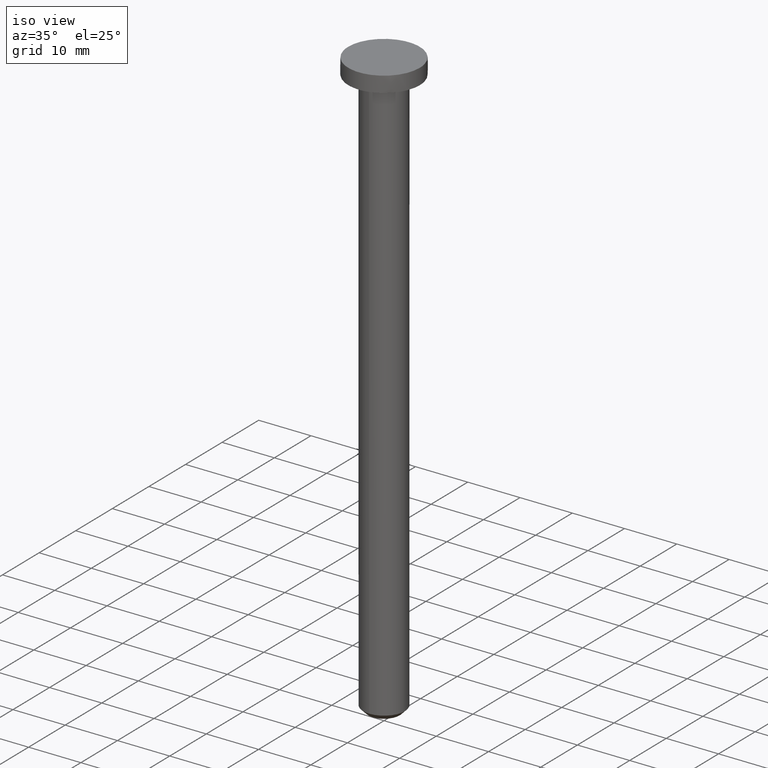
[diagram: clean part render]
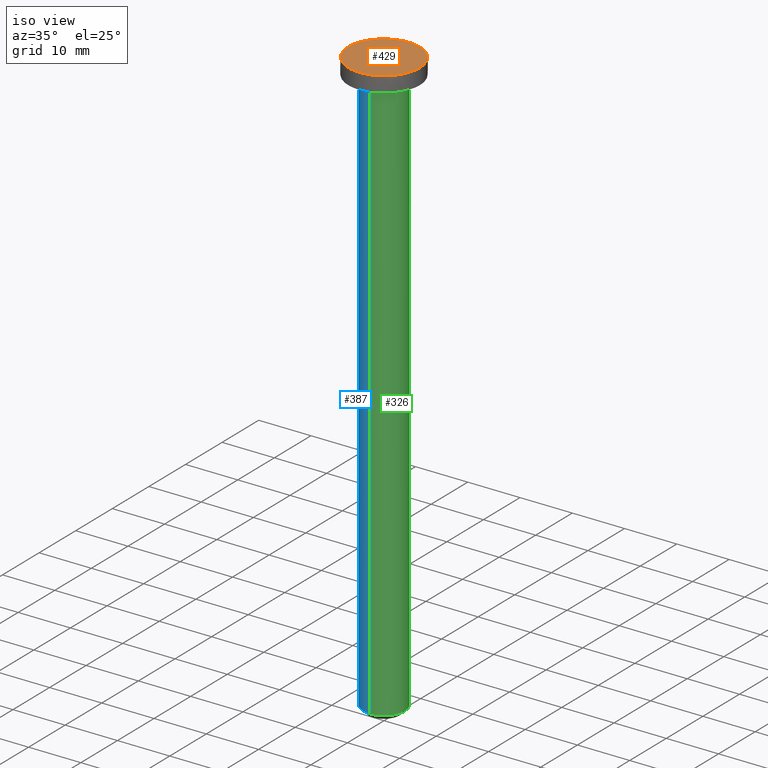
[diagram: same view with three faces highlighted in distinct colors, each labeled with its STEP entity id]
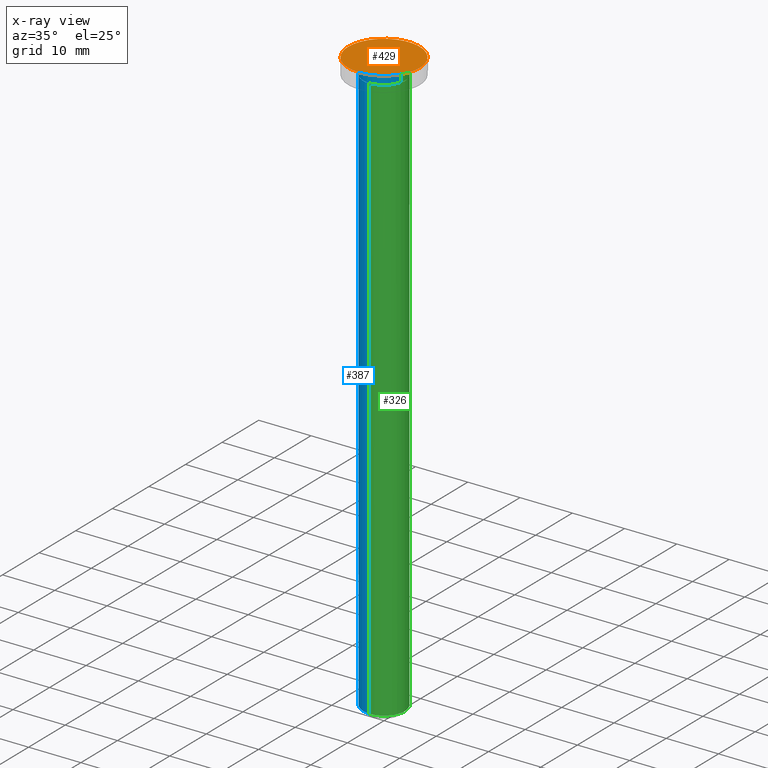
[diagram: x-ray of the same camera — body ghosted, the three highlighted faces saturated]
A machine part, iso view with three faces highlighted in distinct colors.
The next image is the same camera in x-ray (body ghosted, the three faces saturated) — at least one of them is partly hidden behind the body in this view.
Their STEP definitions:

[orange] entity #429 — the highlighted face is a freeform B-spline surface patch.
#388=CARTESIAN_POINT('',(-7.520453119272260,-7.520453119272164,112.999999993067210));
#389=CARTESIAN_POINT('',(7.520453486058826,-7.520453119272164,112.999999993067210));
#390=CARTESIAN_POINT('',(-7.520453119272260,7.520453486058730,112.999999993067210));
#391=CARTESIAN_POINT('',(7.520453486058826,7.520453486058730,112.999999993067210));
#392=B_SPLINE_SURFACE_WITH_KNOTS('',1,1,((#388,#390),(#389,#391)),.UNSPECIFIED.,.F.,.F.,.U.,(2,2),(2,2),(0.0,15.040906605331079),(0.0,15.040906605330891),.UNSPECIFIED.);
#393=CARTESIAN_POINT('',(6.837397168630480,0.0,112.999999986134600));
#394=VERTEX_POINT('',#393);
#395=CARTESIAN_POINT('',(-6.837397168630480,0.0,112.999999986134600));
#396=VERTEX_POINT('',#395);
#397=CARTESIAN_POINT('',(6.837397168630480,0.0,112.999999986134600));
#398=CARTESIAN_POINT('',(6.837397168630479,-6.837397168630479,112.999999986134600));
#399=CARTESIAN_POINT('',(0.0,-6.837397168630480,112.999999986134600));
#400=CARTESIAN_POINT('',(-6.837397168630479,-6.837397168630479,112.999999986134600));
#401=CARTESIAN_POINT('',(-6.837397168630480,0.0,112.999999986134600));
#409=(BOUNDED_CURVE()B_SPLINE_CURVE(2,(#397,#398,#399,#400,#401),.UNSPECIFIED.,.F.,.U.)B_SPLINE_CURVE_WITH_KNOTS((3,2,3),(0.500000000000000,0.750000000000000,1.0),.UNSPECIFIED.)CURVE()GEOMETRIC_REPRESENTATION_ITEM()RATIONAL_B_SPLINE_CURVE((1.0,0.707106781186548,1.0,0.707106781186548,1.0))REPRESENTATION_ITEM(''));
#410=EDGE_CURVE('',#394,#396,#409,.T.);
#411=ORIENTED_EDGE('',*,*,#410,.F.);
#412=CARTESIAN_POINT('',(-6.837397168630480,0.0,112.999999986134600));
#413=CARTESIAN_POINT('',(-6.837397168630479,6.837397168630479,112.999999986134600));
#414=CARTESIAN_POINT('',(0.0,6.837397168630480,112.999999986134600));
#415=CARTESIAN_POINT('',(6.837397168630479,6.837397168630479,112.999999986134600));
#416=CARTESIAN_POINT('',(6.837397168630480,0.0,112.999999986134600));
#424=(BOUNDED_CURVE()B_SPLINE_CURVE(2,(#412,#413,#414,#415,#416),.UNSPECIFIED.,.F.,.U.)B_SPLINE_CURVE_WITH_KNOTS((3,2,3),(0.0,0.250000000000000,0.500000000000000),.UNSPECIFIED.)CURVE()GEOMETRIC_REPRESENTATION_ITEM()RATIONAL_B_SPLINE_CURVE((1.0,0.707106781186548,1.0,0.707106781186548,1.0))REPRESENTATION_ITEM(''));
#425=EDGE_CURVE('',#396,#394,#424,.T.);
#426=ORIENTED_EDGE('',*,*,#425,.F.);
#427=EDGE_LOOP('',(#411,#426));
#428=FACE_OUTER_BOUND('',#427,.T.);
#429=ADVANCED_FACE('',(#428),#392,.T.);

[blue] entity #387 — the highlighted face is a freeform B-spline surface patch.
#70=CARTESIAN_POINT('',(-3.896872612602162,0.902432181418461,1.000000000113562));
#71=VERTEX_POINT('',#70);
#72=CARTESIAN_POINT('',(-4.0,0.0,1.0));
#73=VERTEX_POINT('',#72);
#74=CARTESIAN_POINT('',(-3.896872612602162,0.902432181418461,1.000000000113562));
#75=CARTESIAN_POINT('',(-4.000000000000001,0.457108643719572,1.0));
#76=CARTESIAN_POINT('',(-4.0,0.0,1.0));
#84=(BOUNDED_CURVE()B_SPLINE_CURVE(2,(#74,#75,#76),.UNSPECIFIED.,.F.,.U.)B_SPLINE_CURVE_WITH_KNOTS((3,3),(0.961422971703980,1.0),.UNSPECIFIED.)CURVE()GEOMETRIC_REPRESENTATION_ITEM()RATIONAL_B_SPLINE_CURVE((0.923556557312165,0.954804200040484,1.0))REPRESENTATION_ITEM(''));
#85=EDGE_CURVE('',#71,#73,#84,.T.);
#143=CARTESIAN_POINT('',(-0.034906143808473,3.999847692487240,1.000000000246385));
#144=VERTEX_POINT('',#143);
#150=CARTESIAN_POINT('',(0.496512008596728,3.969064855267452,1.0));
#151=VERTEX_POINT('',#150);
#152=CARTESIAN_POINT('',(0.496512008596728,3.969064855267452,1.0));
#153=CARTESIAN_POINT('',(0.249219710414635,4.000000000000001,1.0));
#154=CARTESIAN_POINT('',(0.0,4.0,1.0));
#155=CARTESIAN_POINT('',(-0.017453405095732,4.0,1.0));
#156=CARTESIAN_POINT('',(-0.034906143808473,3.999847692487240,1.000000000246385));
#164=(BOUNDED_CURVE()B_SPLINE_CURVE(2,(#152,#153,#154,#155,#156),.UNSPECIFIED.,.F.,.U.)B_SPLINE_CURVE_WITH_KNOTS((3,2,3),(0.728526071005724,0.750000000000000,0.751539894494651),.UNSPECIFIED.)CURVE()GEOMETRIC_REPRESENTATION_ITEM()RATIONAL_B_SPLINE_CURVE((0.954005430228970,0.974841727265180,1.0,0.998195901379314,0.996414027730899))REPRESENTATION_ITEM(''));
#165=EDGE_CURVE('',#151,#144,#164,.T.);
#182=CARTESIAN_POINT('',(-0.034906142388283,-3.999847692253240,1.000000000000000));
#183=VERTEX_POINT('',#182);
#199=CARTESIAN_POINT('',(-4.0,0.0,1.0));
#200=CARTESIAN_POINT('',(-4.0,-3.965244841597140,1.0));
#201=CARTESIAN_POINT('',(-0.034906142388283,-3.999847692253239,1.000000000000000));
#209=(BOUNDED_CURVE()B_SPLINE_CURVE(2,(#199,#200,#201),.UNSPECIFIED.,.F.,.U.)B_SPLINE_CURVE_WITH_KNOTS((3,3),(0.0,0.248460105630242),.UNSPECIFIED.)CURVE()GEOMETRIC_REPRESENTATION_ITEM()RATIONAL_B_SPLINE_CURVE((1.0,0.708910879660912,0.996414028019936))REPRESENTATION_ITEM(''));
#210=EDGE_CURVE('',#73,#183,#209,.T.);
#229=CARTESIAN_POINT('',(-0.034906143808473,3.999847692487240,1.000000000246385));
#230=CARTESIAN_POINT('',(-3.185945672998599,3.972348984009678,1.0));
#231=CARTESIAN_POINT('',(-3.896872612602162,0.902432181418461,1.000000000113562));
#239=(BOUNDED_CURVE()B_SPLINE_CURVE(2,(#229,#230,#231),.UNSPECIFIED.,.F.,.U.)B_SPLINE_CURVE_WITH_KNOTS((3,3),(0.751539894494651,0.961422971703981),.UNSPECIFIED.)CURVE()GEOMETRIC_REPRESENTATION_ITEM()RATIONAL_B_SPLINE_CURVE((0.996414027730898,0.753549905658436,0.923556557312166))REPRESENTATION_ITEM(''));
#240=EDGE_CURVE('',#144,#71,#239,.T.);
#278=CARTESIAN_POINT('',(0.496512008573829,3.969064855270316,110.0));
#279=VERTEX_POINT('',#278);
#295=CARTESIAN_POINT('',(-0.034906142421084,-3.999847692252953,110.0));
#296=VERTEX_POINT('',#295);
#312=CARTESIAN_POINT('',(-0.034906142421084,-3.999847692252953,110.0));
#313=CARTESIAN_POINT('',(-0.034906142388283,-3.999847692253240,1.000000000000000));
#314=QUASI_UNIFORM_CURVE('',1,(#312,#313),.UNSPECIFIED.,.F.,.U.);
#315=EDGE_CURVE('',#296,#183,#314,.T.);
#319=CARTESIAN_POINT('',(0.496512008573829,3.969064855270316,110.0));
#320=CARTESIAN_POINT('',(0.496512008596728,3.969064855267452,1.0));
#321=QUASI_UNIFORM_CURVE('',1,(#319,#320),.UNSPECIFIED.,.F.,.U.);
#322=EDGE_CURVE('',#279,#151,#321,.T.);
#327=CARTESIAN_POINT('',(-0.034906141993496,-3.999847692256684,112.724999999999990));
#328=CARTESIAN_POINT('',(-4.034753834250179,-3.964941550263188,112.725000000000020));
#329=CARTESIAN_POINT('',(-3.999847692256684,0.034906141993496,112.724999999999990));
#330=CARTESIAN_POINT('',(-3.964941550263188,4.034753834250179,112.725000000000020));
#331=CARTESIAN_POINT('',(0.034906141993496,3.999847692256684,112.724999999999990));
#332=CARTESIAN_POINT('',(0.266600635832694,3.997825725041103,112.725000000000010));
#333=CARTESIAN_POINT('',(0.496512008319317,3.969064855302155,112.725000000000070));
#334=CARTESIAN_POINT('',(-0.034906141993496,-3.999847692256684,-1.793125000000003));
#335=CARTESIAN_POINT('',(-4.034753834250179,-3.964941550263188,-1.793125000000004));
#336=CARTESIAN_POINT('',(-3.999847692256684,0.034906141993496,-1.793125000000003));
#337=CARTESIAN_POINT('',(-3.964941550263188,4.034753834250179,-1.793125000000004));
#338=CARTESIAN_POINT('',(0.034906141993496,3.999847692256684,-1.793125000000003));
#339=CARTESIAN_POINT('',(0.266600635832694,3.997825725041103,-1.793125000000004));
#340=CARTESIAN_POINT('',(0.496512008319317,3.969064855302155,-1.793125000000003));
#348=(BOUNDED_SURFACE()B_SPLINE_SURFACE(2,1,((#327,#334),(#328,#335),(#329,#336),(#330,#337),(#331,#338),(#332,#339),(#333,#340)),.UNSPECIFIED.,.F.,.F.,.U.)B_SPLINE_SURFACE_WITH_KNOTS((3,2,2,3),(2,2),(0.0,6.627416997969519,13.254833995939039,13.785027355776601),(0.0,114.518125000000000),.UNSPECIFIED.)GEOMETRIC_REPRESENTATION_ITEM()RATIONAL_B_SPLINE_SURFACE(((1.0,1.0),(0.707106781186548,0.707106781186548),(1.0,1.0),(0.707106781186548,0.707106781186548),(1.0,1.0),(0.976568542494924,0.976568542494924),(0.956886118190660,0.956886118190660)))REPRESENTATION_ITEM('')SURFACE());
#349=CARTESIAN_POINT('',(-4.0,0.0,110.0));
#350=VERTEX_POINT('',#349);
#351=CARTESIAN_POINT('',(-4.0,0.0,110.0));
#352=CARTESIAN_POINT('',(-4.000000000000000,4.000000000000000,110.0));
#353=CARTESIAN_POINT('',(0.0,4.0,110.0));
#354=CARTESIAN_POINT('',(0.249219710391468,4.0,109.999999999999970));
#355=CARTESIAN_POINT('',(0.496512008573829,3.969064855270316,110.0));
#363=(BOUNDED_CURVE()B_SPLINE_CURVE(2,(#351,#352,#353,#354,#355),.UNSPECIFIED.,.F.,.U.)B_SPLINE_CURVE_WITH_KNOTS((3,2,3),(0.0,0.250000000000000,0.271473928992330),.UNSPECIFIED.)CURVE()GEOMETRIC_REPRESENTATION_ITEM()RATIONAL_B_SPLINE_CURVE((1.0,0.707106781186548,1.0,0.974841727267460,0.954005430232746))REPRESENTATION_ITEM(''));
#364=EDGE_CURVE('',#350,#279,#363,.T.);
#365=ORIENTED_EDGE('',*,*,#364,.T.);
#366=ORIENTED_EDGE('',*,*,#322,.T.);
#367=ORIENTED_EDGE('',*,*,#165,.T.);
#368=ORIENTED_EDGE('',*,*,#240,.T.);
#369=ORIENTED_EDGE('',*,*,#85,.T.);
#370=ORIENTED_EDGE('',*,*,#210,.T.);
#371=ORIENTED_EDGE('',*,*,#315,.F.);
#372=CARTESIAN_POINT('',(-0.034906142421084,-3.999847692252954,110.000000000000040));
#373=CARTESIAN_POINT('',(-4.000000000000001,-3.965244841532100,109.999999999999990));
#374=CARTESIAN_POINT('',(-4.0,0.0,110.0));
#382=(BOUNDED_CURVE()B_SPLINE_CURVE(2,(#372,#373,#374),.UNSPECIFIED.,.F.,.U.)B_SPLINE_CURVE_WITH_KNOTS((3,3),(0.751539894372647,1.0),.UNSPECIFIED.)CURVE()GEOMETRIC_REPRESENTATION_ITEM()RATIONAL_B_SPLINE_CURVE((0.996414028013251,0.708910879664297,1.0))REPRESENTATION_ITEM(''));
#383=EDGE_CURVE('',#296,#350,#382,.T.);
#384=ORIENTED_EDGE('',*,*,#383,.T.);
#385=EDGE_LOOP('',(#365,#366,#367,#368,#369,#370,#371,#384));
#386=FACE_OUTER_BOUND('',#385,.T.);
#387=ADVANCED_FACE('',(#386),#348,.T.);

[green] entity #326 — the highlighted face is a freeform B-spline surface patch.
#150=CARTESIAN_POINT('',(0.496512008596728,3.969064855267452,1.0));
#151=VERTEX_POINT('',#150);
#167=CARTESIAN_POINT('',(4.0,0.0,1.0));
#168=VERTEX_POINT('',#167);
#169=CARTESIAN_POINT('',(4.0,0.0,1.0));
#170=CARTESIAN_POINT('',(4.0,3.530794400103492,1.0));
#171=CARTESIAN_POINT('',(0.496512008596728,3.969064855267452,1.0));
#179=(BOUNDED_CURVE()B_SPLINE_CURVE(2,(#169,#170,#171),.UNSPECIFIED.,.F.,.U.)B_SPLINE_CURVE_WITH_KNOTS((3,3),(0.500000000000000,0.728526071005724),.UNSPECIFIED.)CURVE()GEOMETRIC_REPRESENTATION_ITEM()RATIONAL_B_SPLINE_CURVE((1.0,0.732265053921368,0.954005430228968))REPRESENTATION_ITEM(''));
#180=EDGE_CURVE('',#168,#151,#179,.T.);
#182=CARTESIAN_POINT('',(-0.034906142388283,-3.999847692253240,1.000000000000000));
#183=VERTEX_POINT('',#182);
#184=CARTESIAN_POINT('',(-0.034906142388283,-3.999847692253239,1.000000000000000));
#185=CARTESIAN_POINT('',(-0.017453403677616,-4.0,1.0));
#186=CARTESIAN_POINT('',(0.0,-4.0,1.0));
#187=CARTESIAN_POINT('',(4.000000000000000,-4.000000000000000,1.0));
#188=CARTESIAN_POINT('',(4.0,0.0,1.0));
#196=(BOUNDED_CURVE()B_SPLINE_CURVE(2,(#184,#185,#186,#187,#188),.UNSPECIFIED.,.F.,.U.)B_SPLINE_CURVE_WITH_KNOTS((3,2,3),(0.248460105630242,0.250000000000000,0.500000000000000),.UNSPECIFIED.)CURVE()GEOMETRIC_REPRESENTATION_ITEM()RATIONAL_B_SPLINE_CURVE((0.996414028019936,0.998195901525636,1.0,0.707106781186548,1.0))REPRESENTATION_ITEM(''));
#197=EDGE_CURVE('',#183,#168,#196,.T.);
#260=CARTESIAN_POINT('',(0.496512008319317,3.969064855302155,112.725000000000070));
#261=CARTESIAN_POINT('',(4.030931322009780,3.526925032532884,112.725000000000020));
#262=CARTESIAN_POINT('',(3.999847692256684,-0.034906141993496,112.724999999999990));
#263=CARTESIAN_POINT('',(3.964941550263188,-4.034753834250179,112.725000000000020));
#264=CARTESIAN_POINT('',(-0.034906141993496,-3.999847692256684,112.724999999999990));
#265=CARTESIAN_POINT('',(0.496512008319317,3.969064855302155,-1.793125000000003));
#266=CARTESIAN_POINT('',(4.030931322009780,3.526925032532884,-1.793125000000004));
#267=CARTESIAN_POINT('',(3.999847692256684,-0.034906141993496,-1.793125000000003));
#268=CARTESIAN_POINT('',(3.964941550263188,-4.034753834250179,-1.793125000000004));
#269=CARTESIAN_POINT('',(-0.034906141993496,-3.999847692256684,-1.793125000000003));
#277=(BOUNDED_SURFACE()B_SPLINE_SURFACE(2,1,((#260,#265),(#261,#266),(#262,#267),(#263,#268),(#264,#269)),.UNSPECIFIED.,.F.,.F.,.U.)B_SPLINE_SURFACE_WITH_KNOTS((3,2,3),(2,2),(0.0,6.097223638131957,12.724640636101480),(0.0,114.518125000000000),.UNSPECIFIED.)GEOMETRIC_REPRESENTATION_ITEM()RATIONAL_B_SPLINE_SURFACE(((0.956886118190660,0.956886118190660),(0.730538238691624,0.730538238691624),(1.0,1.0),(0.707106781186548,0.707106781186548),(1.0,1.0)))REPRESENTATION_ITEM('')SURFACE());
#278=CARTESIAN_POINT('',(0.496512008573829,3.969064855270316,110.0));
#279=VERTEX_POINT('',#278);
#280=CARTESIAN_POINT('',(4.0,0.0,110.0));
#281=VERTEX_POINT('',#280);
#282=CARTESIAN_POINT('',(0.496512008573829,3.969064855270316,110.0));
#283=CARTESIAN_POINT('',(4.000000000000000,3.530794400144569,110.0));
#284=CARTESIAN_POINT('',(4.0,0.0,110.0));
#292=(BOUNDED_CURVE()B_SPLINE_CURVE(2,(#282,#283,#284),.UNSPECIFIED.,.F.,.U.)B_SPLINE_CURVE_WITH_KNOTS((3,3),(0.271473928992330,0.500000000000000),.UNSPECIFIED.)CURVE()GEOMETRIC_REPRESENTATION_ITEM()RATIONAL_B_SPLINE_CURVE((0.954005430232746,0.732265053919087,1.0))REPRESENTATION_ITEM(''));
#293=EDGE_CURVE('',#279,#281,#292,.T.);
#294=ORIENTED_EDGE('',*,*,#293,.T.);
#295=CARTESIAN_POINT('',(-0.034906142421084,-3.999847692252953,110.0));
#296=VERTEX_POINT('',#295);
#297=CARTESIAN_POINT('',(4.0,0.0,110.0));
#298=CARTESIAN_POINT('',(4.000000000000000,-4.000000000000000,110.0));
#299=CARTESIAN_POINT('',(0.0,-4.0,110.0));
#300=CARTESIAN_POINT('',(-0.017453403710428,-4.0,110.0));
#301=CARTESIAN_POINT('',(-0.034906142421084,-3.999847692252954,110.000000000000040));
#309=(BOUNDED_CURVE()B_SPLINE_CURVE(2,(#297,#298,#299,#300,#301),.UNSPECIFIED.,.F.,.U.)B_SPLINE_CURVE_WITH_KNOTS((3,2,3),(0.500000000000000,0.750000000000000,0.751539894372648),.UNSPECIFIED.)CURVE()GEOMETRIC_REPRESENTATION_ITEM()RATIONAL_B_SPLINE_CURVE((1.0,0.707106781186548,1.0,0.998195901522250,0.996414028013249))REPRESENTATION_ITEM(''));
#310=EDGE_CURVE('',#281,#296,#309,.T.);
#311=ORIENTED_EDGE('',*,*,#310,.T.);
#312=CARTESIAN_POINT('',(-0.034906142421084,-3.999847692252953,110.0));
#313=CARTESIAN_POINT('',(-0.034906142388283,-3.999847692253240,1.000000000000000));
#314=QUASI_UNIFORM_CURVE('',1,(#312,#313),.UNSPECIFIED.,.F.,.U.);
#315=EDGE_CURVE('',#296,#183,#314,.T.);
#316=ORIENTED_EDGE('',*,*,#315,.T.);
#317=ORIENTED_EDGE('',*,*,#197,.T.);
#318=ORIENTED_EDGE('',*,*,#180,.T.);
#319=CARTESIAN_POINT('',(0.496512008573829,3.969064855270316,110.0));
#320=CARTESIAN_POINT('',(0.496512008596728,3.969064855267452,1.0));
#321=QUASI_UNIFORM_CURVE('',1,(#319,#320),.UNSPECIFIED.,.F.,.U.);
#322=EDGE_CURVE('',#279,#151,#321,.T.);
#323=ORIENTED_EDGE('',*,*,#322,.F.);
#324=EDGE_LOOP('',(#294,#311,#316,#317,#318,#323));
#325=FACE_OUTER_BOUND('',#324,.T.);
#326=ADVANCED_FACE('',(#325),#277,.T.);